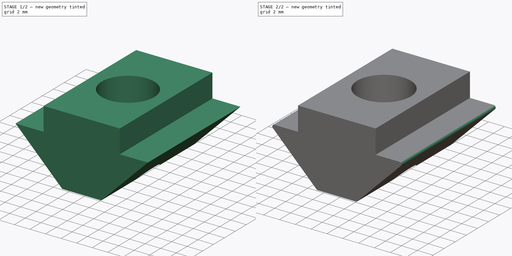
[diagram: build sequence overview — one tinted view per stage of 2, left to right]
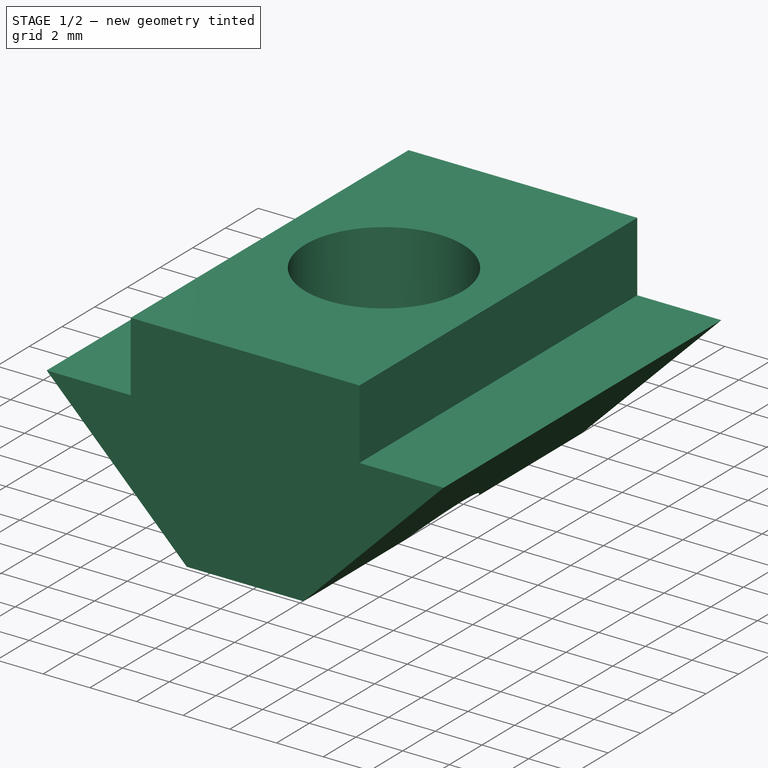
[diagram: stage 1 of 2 — iso view after this stage's code; geometry added in this stage tinted green]
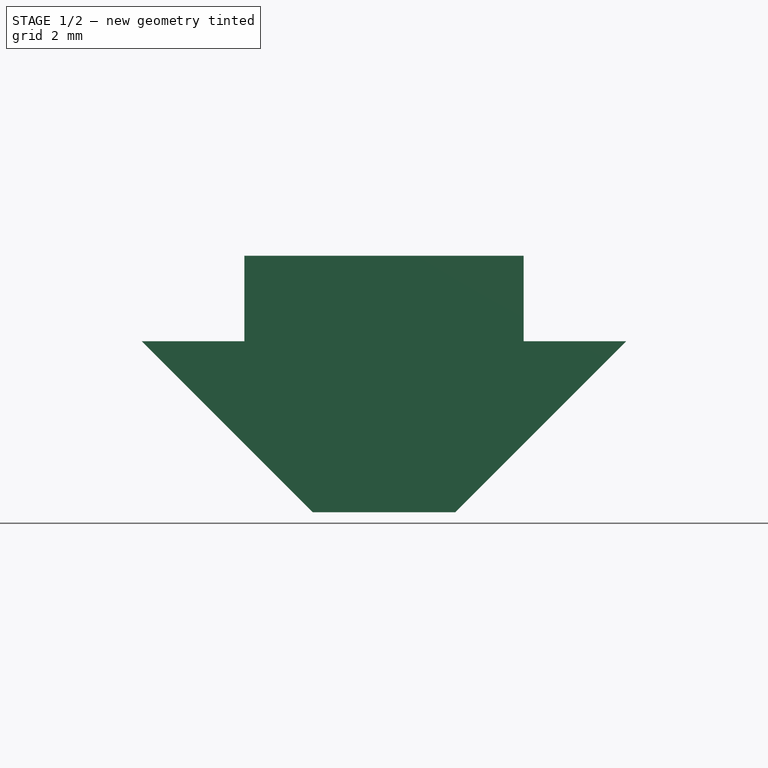
[diagram: stage 1 of 2 — front view after this stage's code; geometry added in this stage tinted green]
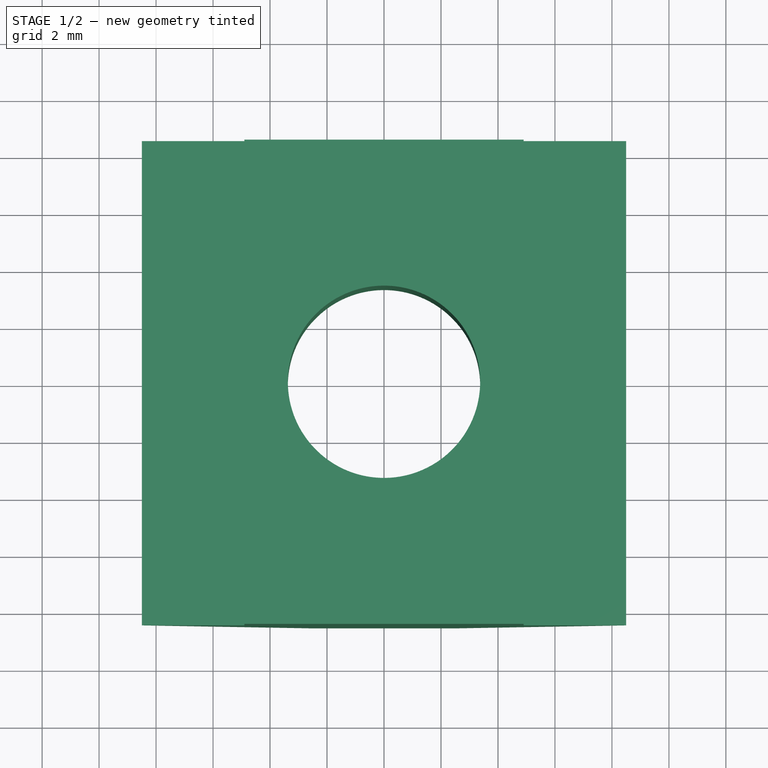
[diagram: stage 1 of 2 — top view after this stage's code; geometry added in this stage tinted green]
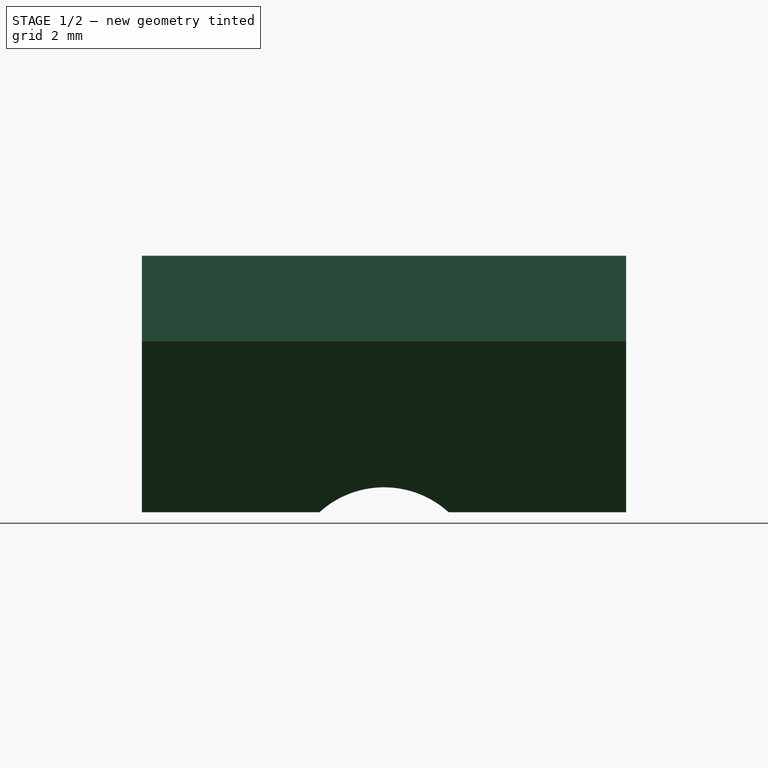
[diagram: stage 1 of 2 — right view after this stage's code; geometry added in this stage tinted green]
FCSTD DOCUMENT  (FreeCAD 0.19R21858 (Git))
Label: t-nut_m8
License: All rights reserved
LicenseURL: http://en.wikipedia.org/wiki/All_rights_reserved
objects: Sketcher::SketchObject×2, PartDesign::Pad×1, PartDesign::Hole×1, PartDesign::Fillet×1, PartDesign::Body×1, App::Part×1
note: 9 computed .brp shape members not serialized (recipe doc carries the construction recipe); baked Part::Feature solids carry a one-line shape summary decoded from their .brp

FEATURE [Sketcher::SketchObject] Sketch075
  MapMode = 5
  Placement = pos=(0,0,0) rot=(1,0,0;1.5708rad)
  Support = -> [XZ_Plane094]
  sketch-geometry (8):
    g0: LineSegment StartX=-4.9 StartY=-3 StartZ=0 EndX=-4.9 EndY=0 EndZ=0
    g1: LineSegment StartX=-4.9 StartY=0 StartZ=0 EndX=4.9 EndY=0 EndZ=0
    g2: LineSegment StartX=4.9 StartY=0 StartZ=0 EndX=4.9 EndY=-3 EndZ=0
    g3: LineSegment StartX=4.9 StartY=-3 StartZ=0 EndX=8.5 EndY=-3 EndZ=0
    g4: LineSegment StartX=8.5 StartY=-3 StartZ=0 EndX=2.5 EndY=-9 EndZ=0
    g5: LineSegment StartX=2.5 StartY=-9 StartZ=0 EndX=-2.5 EndY=-9 EndZ=0
    g6: LineSegment StartX=-2.5 StartY=-9 StartZ=0 EndX=-8.5 EndY=-3 EndZ=0
    g7: LineSegment StartX=-8.5 StartY=-3 StartZ=0 EndX=-4.9 EndY=-3 EndZ=0
  constraints (20):
    c: Coincident(g0,g1)
    c: Coincident(g1,g2)
    c: Vertical(g2)
    c: Coincident(g2,g3)
    c: Coincident(g4,g5)
    c: Coincident(g5,g6)
    c: Symmetric(g0,g2,g-2)
    c: Coincident(g7,g0)
    c: Symmetric(g0,g1,g-2)
    c: PointOnObject(g-1,g1)
    c: Symmetric(g5,g4,g-2)
    c: Horizontal(g3)
    c: Symmetric(g7,g3,g-2)
    c: Perpendicular(g6,g4)
    c: DistanceY(g4,g1) = 9
    c: DistanceX(g1,g1) = 9.8
    c: DistanceY(g2,g2) = 3
    c: Coincident(g6,g7)
    c: Coincident(g4,g3)
    c: DistanceX(g6,g3) = 17
FEATURE [PartDesign::Pad] Pad027  label="Pad028"
  Length = 17
  Length2 = 100
  Midplane = true
  Placement = pos=(0,0,0) rot=(1,0,0;1.5708rad)
  Profile = -> Sketch075
  Type = 0
FEATURE [Sketcher::SketchObject] Sketch076
  MapMode = 5
  Support = -> [XY_Plane094]
  sketch-geometry (1):
    g0: Circle CenterX=0 CenterY=0 CenterZ=0 NormalX=0 NormalY=0 NormalZ=1 AngleXU=0 Radius=4
  constraints (2):
    c: Coincident(g0,g-1)
    c: Diameter(g0) = 8
FEATURE [PartDesign::Hole] Hole015
  BaseFeature = -> Pad027
  Depth = 25
  DepthType = 1
  Diameter = 6.75
  DrillPoint = 1
  DrillPointAngle = 118
  HoleCutCountersinkAngle = 90
  HoleCutDepth = 0
  HoleCutDiameter = 8
  HoleCutType = 0
  ModelActualThread = false
  Placement = pos=(0,0,0) rot=(1,0,0;1.5708rad)
  Profile = -> Sketch076
  Tapered = false
  TaperedAngle = 90
  ThreadAngle = 60
  ThreadClass = 0
  ThreadCutOffInner = 0.135316
  ThreadCutOffOuter = 0.270633
  ThreadDirection = 0
  ThreadFit = 0
  ThreadPitch = 1.25
  ThreadSize = 8
  ThreadType = 1
  Threaded = true
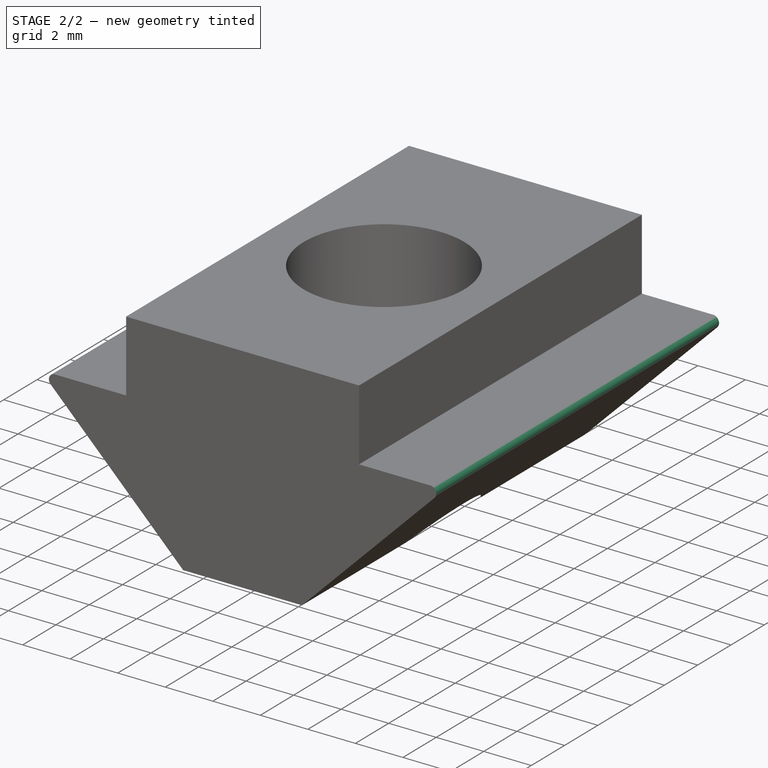
[diagram: stage 2 of 2 — iso view after this stage's code; geometry added in this stage tinted green]
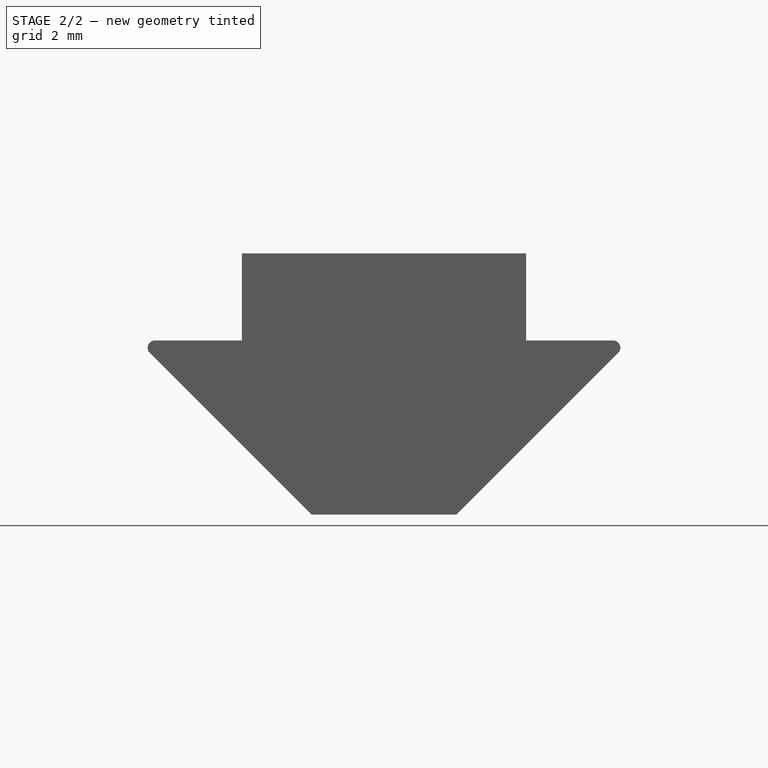
[diagram: stage 2 of 2 — front view after this stage's code; geometry added in this stage tinted green]
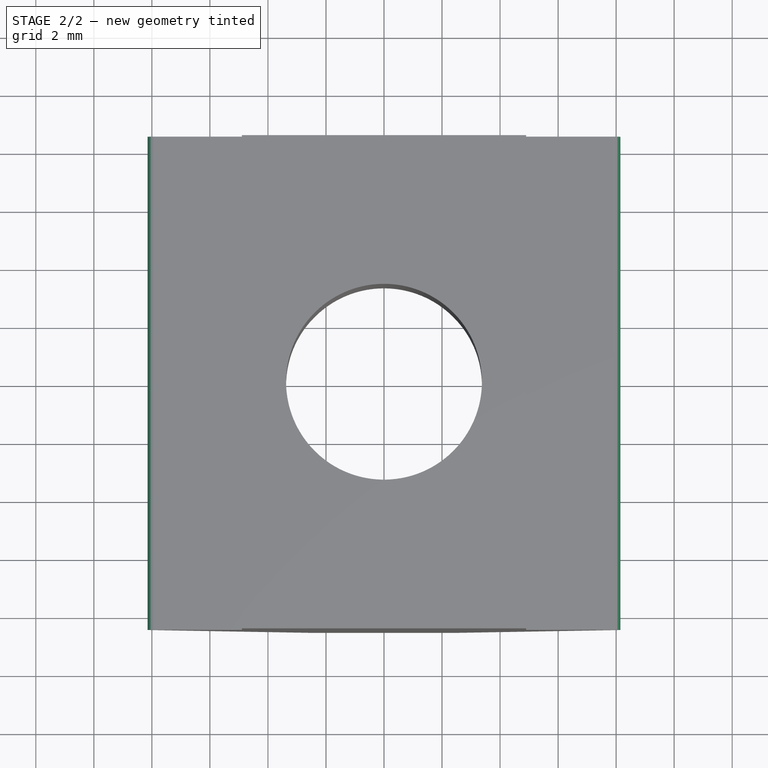
[diagram: stage 2 of 2 — top view after this stage's code; geometry added in this stage tinted green]
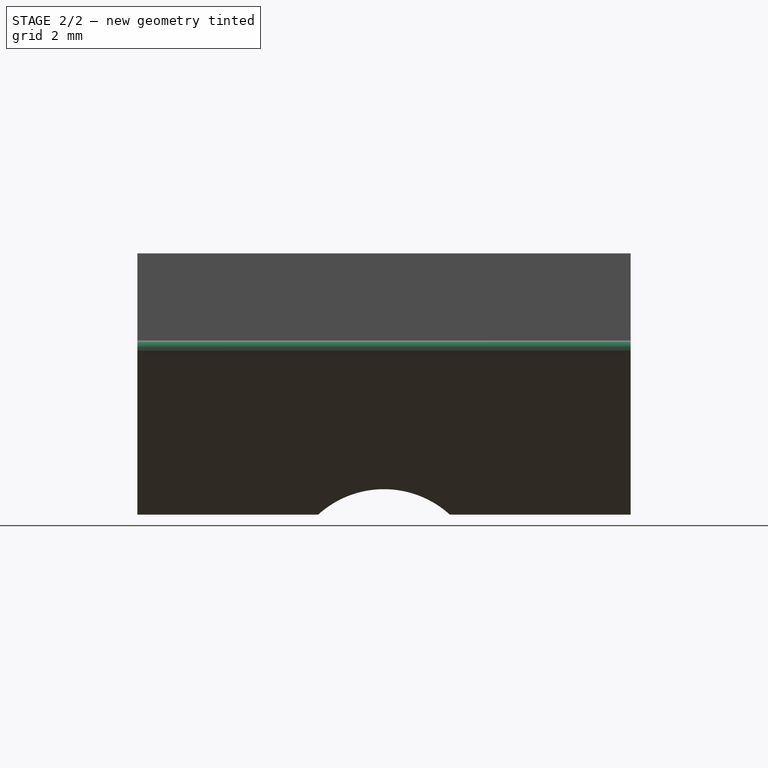
[diagram: stage 2 of 2 — right view after this stage's code; geometry added in this stage tinted green]
FEATURE [PartDesign::Fillet] Fillet005
  Base = -> Hole015 [Edge31,Edge5]
  BaseFeature = -> Hole015
  Placement = pos=(0,0,0) rot=(1,0,0;1.5708rad)
  Radius = 0.25
  SupportTransform = true
FEATURE [PartDesign::Body] Body029  label="Body"
  Group = -> [Sketch075,Pad027,Sketch076,Hole015,Fillet005]
  Origin = -> Origin094
  Tip = -> Fillet005
FEATURE [App::Part] Part  label="t-nut_m8"
  Group = -> [Body029]
  Origin = -> Origin
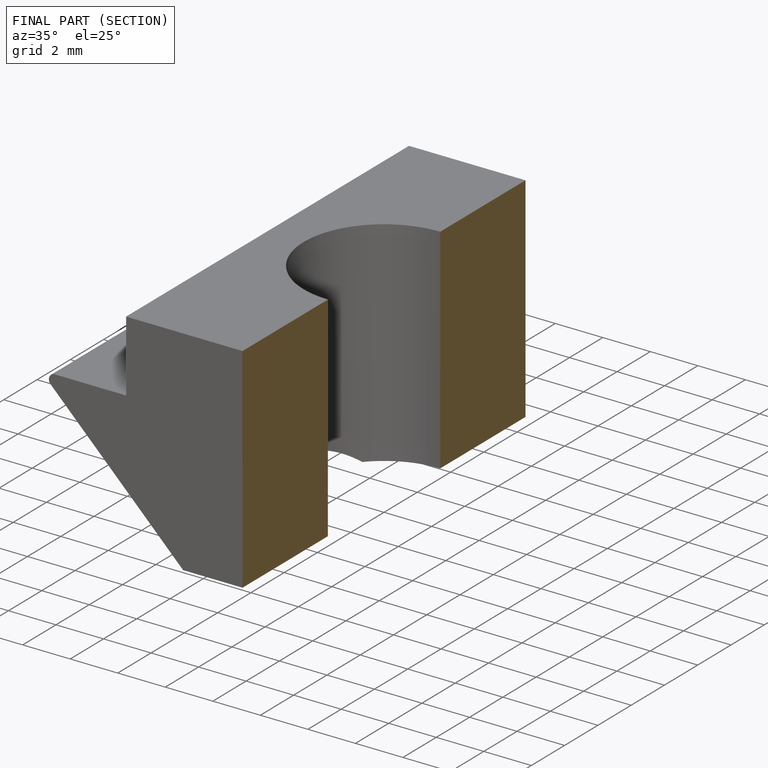
[diagram: finished part — half-section view (interior)]
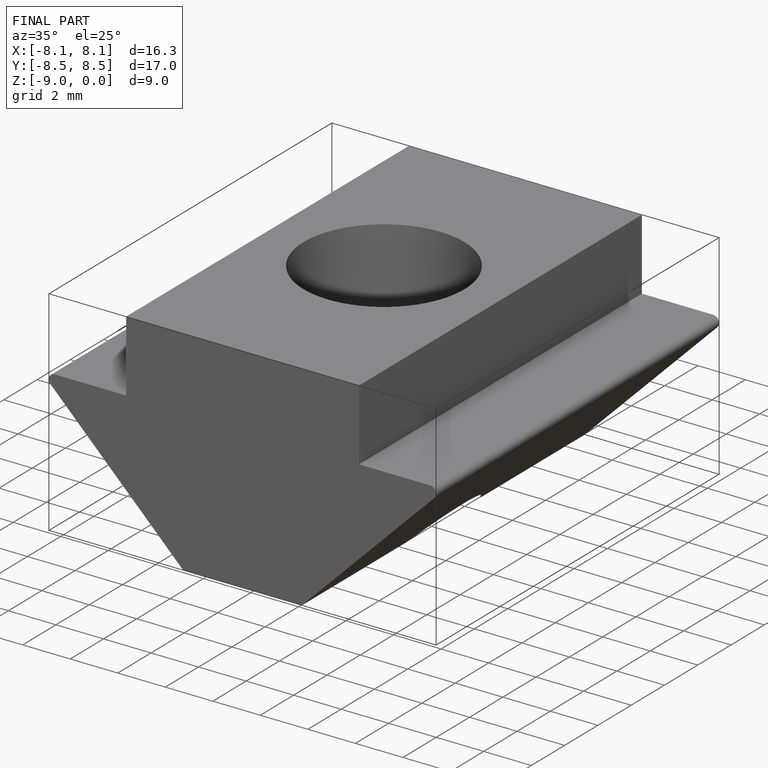
[diagram: finished part — iso view with bounding-box wireframe]
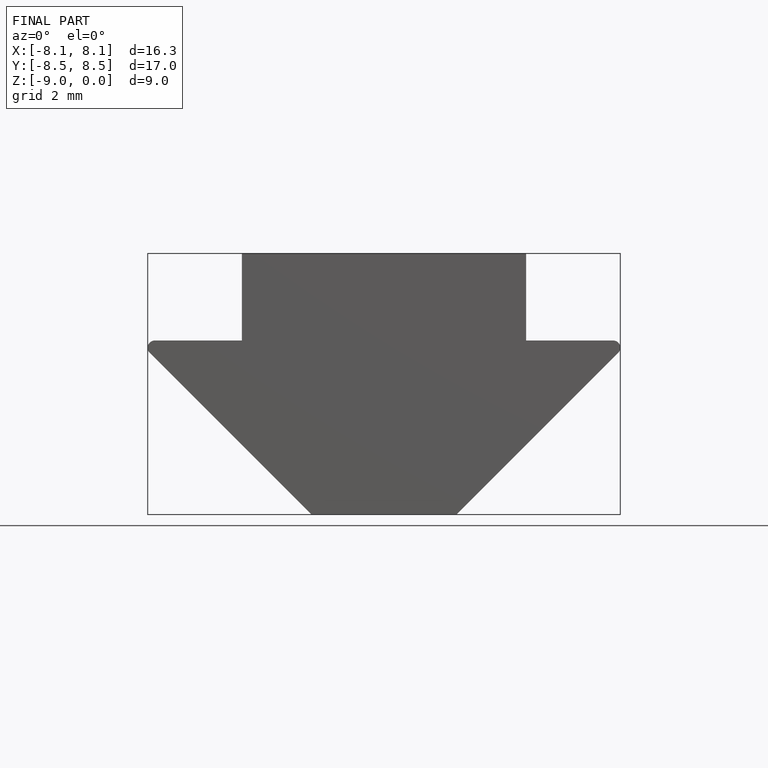
[diagram: finished part — front view with bounding-box wireframe]
